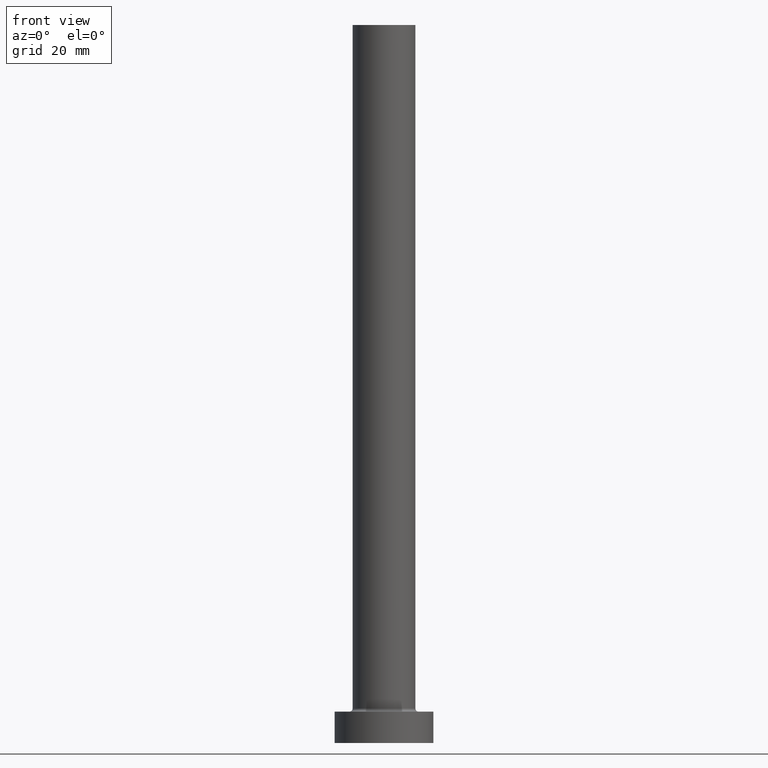
[diagram: clean part render]
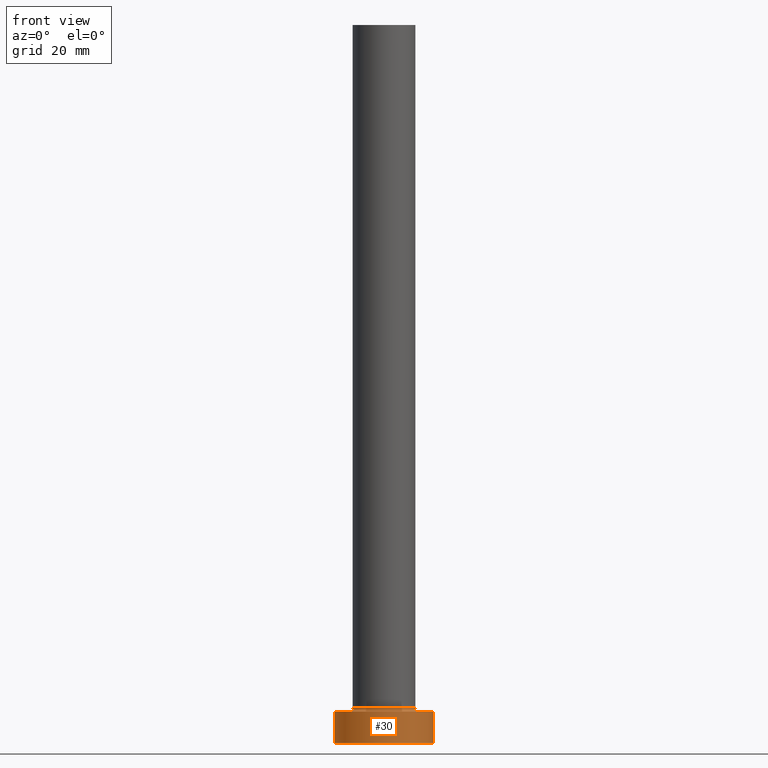
[diagram: same view with one face highlighted and labeled with its STEP entity id]
A machine part, front view. The second image highlights one B-rep face of the part: STEP entity #30.
In plain terms, the highlighted cylindrical surface (partial cylindrical patch) has radius 11 mm, axis along (-0, -0, -1).
Its self-contained STEP definition (entity closure, byte-faithful):
#9 = FACE_OUTER_BOUND ( 'NONE', #59, .T. ) ;
#24 = AXIS2_PLACEMENT_3D ( 'NONE', #67, #212, #301 ) ;
#26 = ORIENTED_EDGE ( 'NONE', *, *, #446, .T. ) ;
#30 = ADVANCED_FACE ( 'NONE', ( #9 ), #111, .T. ) ;
#40 = CARTESIAN_POINT ( 'NONE',  ( 11.00000000000000000, 1.347111479062088405E-15, 7.000000000000000000 ) ) ;
#59 = EDGE_LOOP ( 'NONE', ( #302, #448, #287, #26 ) ) ;
#67 = CARTESIAN_POINT ( 'NONE',  ( 0.000000000000000000, 0.000000000000000000, 7.000000000000000000 ) ) ;
#78 = CARTESIAN_POINT ( 'NONE',  ( -11.00000000000000000, 0.000000000000000000, 7.000000000000000000 ) ) ;
#86 = DIRECTION ( 'NONE',  ( -0.000000000000000000, -0.000000000000000000, -1.000000000000000000 ) ) ;
#109 = VERTEX_POINT ( 'NONE', #315 ) ;
#111 = CYLINDRICAL_SURFACE ( 'NONE', #24, 11.00000000000000000 ) ;
#119 = VERTEX_POINT ( 'NONE', #412 ) ;
#130 = CIRCLE ( 'NONE', #267, 11.00000000000000000 ) ;
#131 = AXIS2_PLACEMENT_3D ( 'NONE', #190, #141, #303 ) ;
#141 = DIRECTION ( 'NONE',  ( 0.000000000000000000, 0.000000000000000000, 1.000000000000000000 ) ) ;
#145 = LINE ( 'NONE', #422, #340 ) ;
#176 = DIRECTION ( 'NONE',  ( 1.000000000000000000, 0.000000000000000000, 0.000000000000000000 ) ) ;
#190 = CARTESIAN_POINT ( 'NONE',  ( 0.000000000000000000, 0.000000000000000000, 0.000000000000000000 ) ) ;
#202 = DIRECTION ( 'NONE',  ( -0.000000000000000000, -0.000000000000000000, -1.000000000000000000 ) ) ;
#212 = DIRECTION ( 'NONE',  ( -0.000000000000000000, -0.000000000000000000, -1.000000000000000000 ) ) ;
#213 = CARTESIAN_POINT ( 'NONE',  ( 0.000000000000000000, 0.000000000000000000, 7.000000000000000000 ) ) ;
#215 = EDGE_CURVE ( 'NONE', #241, #109, #130, .T. ) ;
#222 = VERTEX_POINT ( 'NONE', #380 ) ;
#238 = VECTOR ( 'NONE', #86, 1000.000000000000000 ) ;
#241 = VERTEX_POINT ( 'NONE', #78 ) ;
#254 = CIRCLE ( 'NONE', #131, 11.00000000000000000 ) ;
#267 = AXIS2_PLACEMENT_3D ( 'NONE', #213, #361, #176 ) ;
#287 = ORIENTED_EDGE ( 'NONE', *, *, #342, .T. ) ;
#301 = DIRECTION ( 'NONE',  ( -1.000000000000000000, 0.000000000000000000, 0.000000000000000000 ) ) ;
#302 = ORIENTED_EDGE ( 'NONE', *, *, #348, .F. ) ;
#303 = DIRECTION ( 'NONE',  ( 1.000000000000000000, 0.000000000000000000, 0.000000000000000000 ) ) ;
#315 = CARTESIAN_POINT ( 'NONE',  ( 11.00000000000000000, 1.347111479062088405E-15, 7.000000000000000000 ) ) ;
#340 = VECTOR ( 'NONE', #202, 1000.000000000000000 ) ;
#342 = EDGE_CURVE ( 'NONE', #241, #222, #145, .T. ) ;
#348 = EDGE_CURVE ( 'NONE', #109, #119, #439, .T. ) ;
#361 = DIRECTION ( 'NONE',  ( 0.000000000000000000, 0.000000000000000000, 1.000000000000000000 ) ) ;
#380 = CARTESIAN_POINT ( 'NONE',  ( -11.00000000000000000, 0.000000000000000000, 0.000000000000000000 ) ) ;
#412 = CARTESIAN_POINT ( 'NONE',  ( 11.00000000000000000, 1.347111479062088405E-15, 0.000000000000000000 ) ) ;
#422 = CARTESIAN_POINT ( 'NONE',  ( -11.00000000000000000, 0.000000000000000000, 7.000000000000000000 ) ) ;
#439 = LINE ( 'NONE', #40, #238 ) ;
#446 = EDGE_CURVE ( 'NONE', #222, #119, #254, .T. ) ;
#448 = ORIENTED_EDGE ( 'NONE', *, *, #215, .F. ) ;